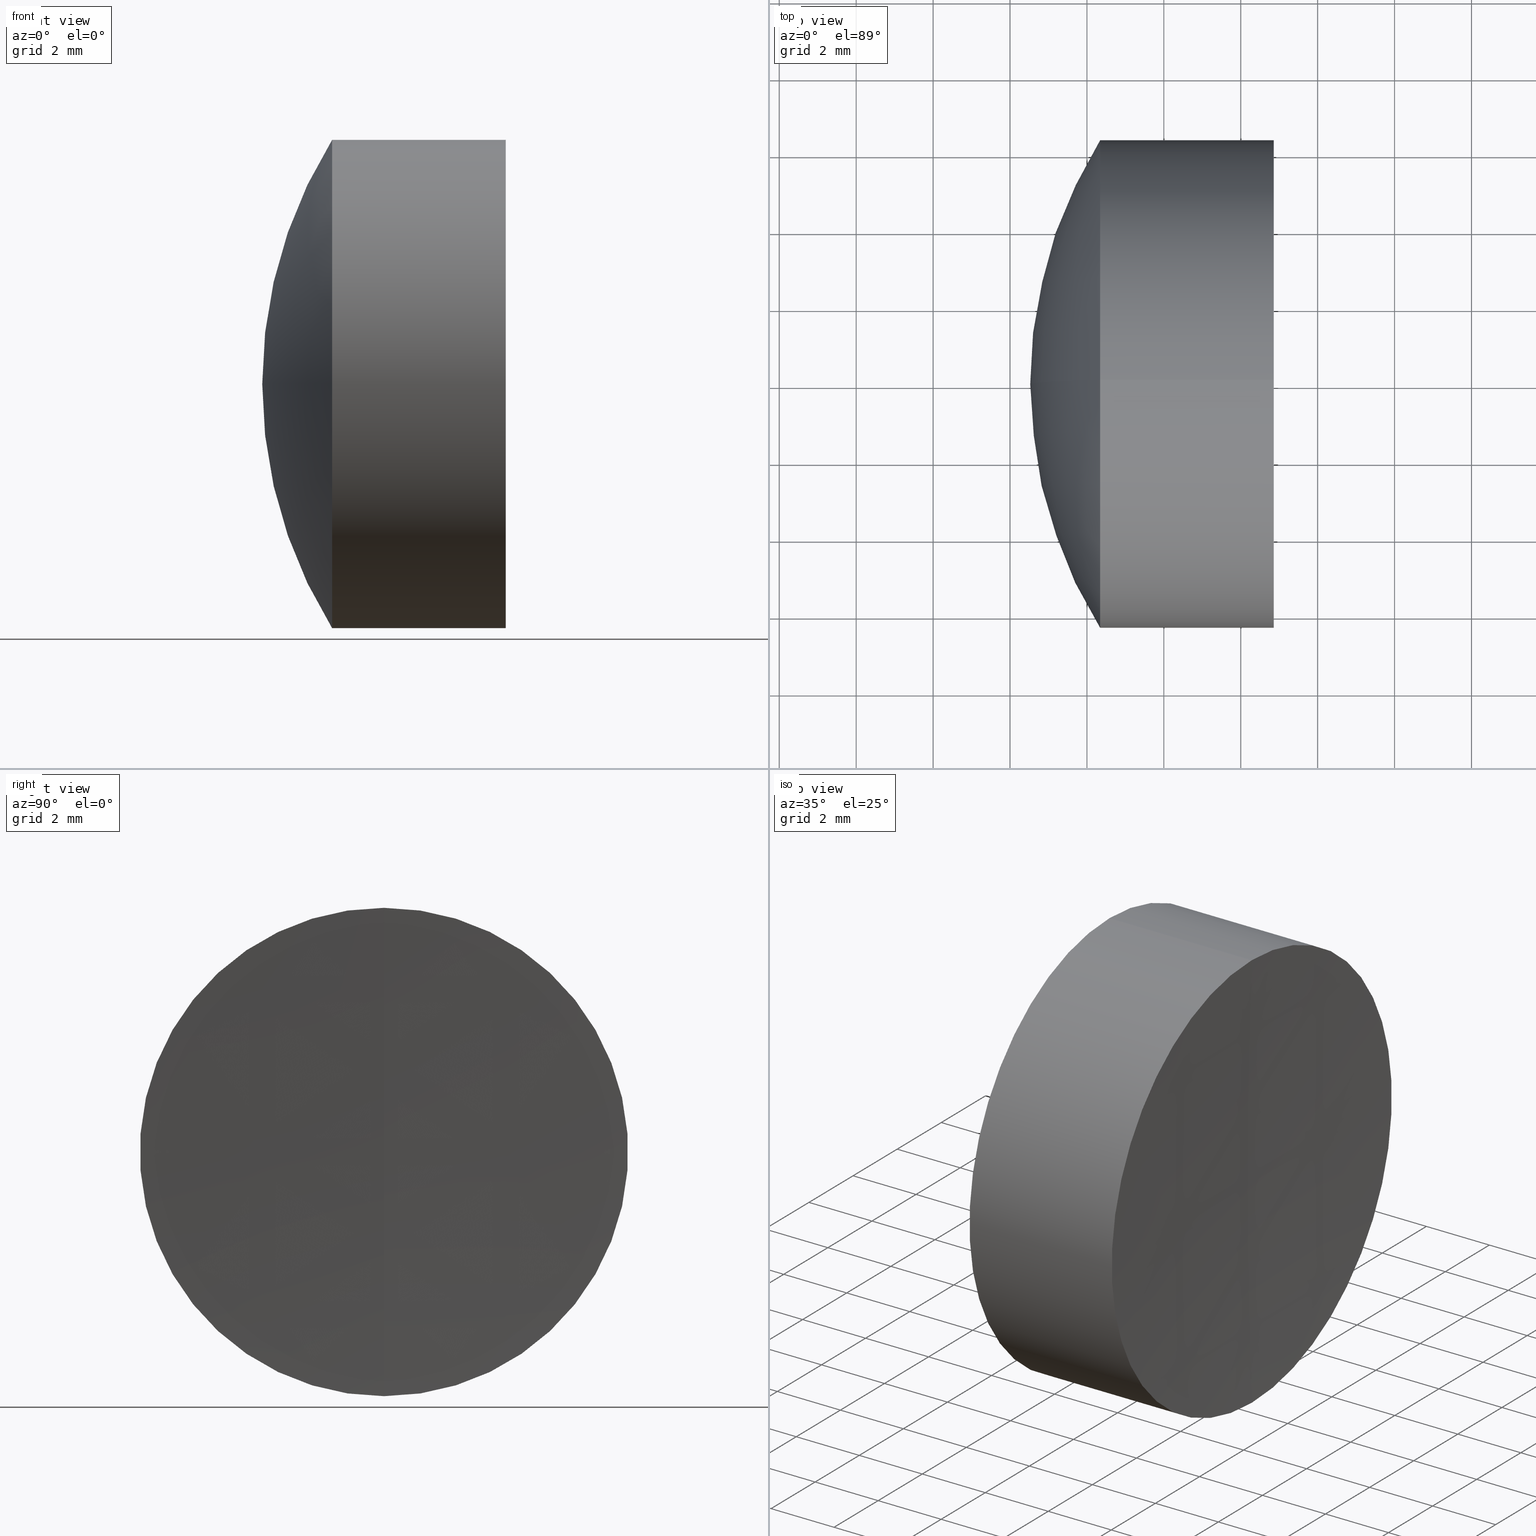
[diagram: canonical four-view strip — front | top / right | iso, engineering-drawing reading convention]
A machine part, canonical four-view strip (front | top / right | iso — engineering-drawing reading convention). The complete STEP part file that produces these views, byte-faithful:
ISO-10303-21;
HEADER;
FILE_DESCRIPTION (( 'STEP AP214' ),
    '1' );
FILE_NAME ('145154.STEP',
    '2019-06-06T09:02:33',
    ( 'user' ),
    ( '΢���й�' ),
    'SwSTEP 2.0',
    'SolidWorks 2016',
    '' );
FILE_SCHEMA (( 'AUTOMOTIVE_DESIGN' ));
ENDSEC;

DATA;
#1 = CIRCLE ( 'NONE', #304, 6.349999999999997900 ) ;
#2 =( LENGTH_UNIT ( ) NAMED_UNIT ( * ) SI_UNIT ( .MILLI., .METRE. ) );
#3 = DIRECTION ( 'NONE',  ( 0.0000000000000000000, -1.000000000000000000, 0.0000000000000000000 ) ) ;
#4 = ORIENTED_EDGE ( 'NONE', *, *, #319, .T. ) ;
#5 = AXIS2_PLACEMENT_3D ( 'NONE', #135, #143, #211 ) ;
#6 = EDGE_CURVE ( 'NONE', #137, #88, #71, .T. ) ;
#7 = SURFACE_STYLE_FILL_AREA ( #155 ) ;
#8 = FACE_OUTER_BOUND ( 'NONE', #107, .T. ) ;
#9 = DIRECTION ( 'NONE',  ( 0.0000000000000000000, 1.224646799147353200E-016, -1.000000000000000000 ) ) ;
#10 = EDGE_CURVE ( 'NONE', #137, #84, #11, .T. ) ;
#11 = CIRCLE ( 'NONE', #161, 6.350000000000004100 ) ;
#12 = DIRECTION ( 'NONE',  ( 0.0000000000000000000, 0.0000000000000000000, 1.000000000000000000 ) ) ;
#13 = CARTESIAN_POINT ( 'NONE',  ( 26.85887678485193300, 0.0000000000000000000, 0.0000000000000000000 ) ) ;
#14 = CARTESIAN_POINT ( 'NONE',  ( 25.22592517938952700, 0.0000000000000000000, 7.923464790483375200E-016 ) ) ;
#15 = CLOSED_SHELL ( 'NONE', ( #157, #140, #271, #239, #324, #345 ) ) ;
#16 = PRESENTATION_LAYER_ASSIGNMENT (  '', '', ( #298 ) ) ;
#17 = CIRCLE ( 'NONE', #332, 6.350000000000004100 ) ;
#18 = CARTESIAN_POINT ( 'NONE',  ( -0.5519199926577972300, 7.776507174585690200E-016, -6.349999999999997900 ) ) ;
#19 = ORIENTED_EDGE ( 'NONE', *, *, #149, .T. ) ;
#20 = CIRCLE ( 'NONE', #109, 6.349999999999997000 ) ;
#21 = DIRECTION ( 'NONE',  ( 0.0000000000000000000, 0.0000000000000000000, 1.000000000000000000 ) ) ;
#22 = CARTESIAN_POINT ( 'NONE',  ( -0.5519199926577972300, 0.0000000000000000000, 0.0000000000000000000 ) ) ;
#23 = SPHERICAL_SURFACE ( 'NONE', #81, 12.94000000000000000 ) ;
#24 = EDGE_CURVE ( 'NONE', #136, #30, #20, .T. ) ;
#25 = DIRECTION ( 'NONE',  ( 0.0000000000000000000, 0.0000000000000000000, 1.000000000000000000 ) ) ;
#26 = ORIENTED_EDGE ( 'NONE', *, *, #24, .T. ) ;
#27 = DIRECTION ( 'NONE',  ( -1.000000000000000000, -0.0000000000000000000, -0.0000000000000000000 ) ) ;
#28 = AXIS2_PLACEMENT_3D ( 'NONE', #289, #280, #97 ) ;
#29 = ORIENTED_EDGE ( 'NONE', *, *, #244, .F. ) ;
#30 = VERTEX_POINT ( 'NONE', #48 ) ;
#31 = VECTOR ( 'NONE', #284, 1000.000000000000000 ) ;
#32 =( GEOMETRIC_REPRESENTATION_CONTEXT ( 3 ) GLOBAL_UNCERTAINTY_ASSIGNED_CONTEXT ( ( #66 ) ) GLOBAL_UNIT_ASSIGNED_CONTEXT ( ( #86, #270, #228 ) ) REPRESENTATION_CONTEXT ( 'NONE', 'WORKASPACE' ) );
#33 = ORIENTED_EDGE ( 'NONE', *, *, #246, .T. ) ;
#34 = COLOUR_RGB ( '',1.000000000000000000, 1.000000000000000000, 1.000000000000000000 ) ;
#35 = LINE ( 'NONE', #323, #31 ) ;
#36 = SURFACE_STYLE_USAGE ( .BOTH. , #222 ) ;
#37 = DIRECTION ( 'NONE',  ( 0.0000000000000000000, 0.0000000000000000000, -1.000000000000000000 ) ) ;
#38 = DIRECTION ( 'NONE',  ( -0.0000000000000000000, -1.000000000000000000, -0.0000000000000000000 ) ) ;
#39 = CIRCLE ( 'NONE', #122, 151.7099999999999800 ) ;
#40 = APPLICATION_CONTEXT ( 'automotive_design' ) ;
#41 = EDGE_CURVE ( 'NONE', #128, #112, #1, .T. ) ;
#42 = DIRECTION ( 'NONE',  ( 0.0000000000000000000, 1.000000000000000000, -0.0000000000000000000 ) ) ;
#43 = ADVANCED_FACE ( 'NONE', ( #8 ), #330, .T. ) ;
#44 = CYLINDRICAL_SURFACE ( 'NONE', #342, 6.349999999999997900 ) ;
#45 = CIRCLE ( 'NONE', #28, 12.94000000000000000 ) ;
#46 = ORIENTED_EDGE ( 'NONE', *, *, #89, .T. ) ;
#47 = DIRECTION ( 'NONE',  ( -0.0000000000000000000, -1.000000000000000000, -0.0000000000000000000 ) ) ;
#48 = CARTESIAN_POINT ( 'NONE',  ( 26.85887678485193700, -7.776507174585457500E-016, 6.349999999999806900 ) ) ;
#49 = CARTESIAN_POINT ( 'NONE',  ( 23.56072451241537300, -7.776507174585689200E-016, 6.349999999999996100 ) ) ;
#50 = DIRECTION ( 'NONE',  ( 0.0000000000000000000, 0.0000000000000000000, 1.000000000000000000 ) ) ;
#51 =( NAMED_UNIT ( * ) SI_UNIT ( $, .STERADIAN. ) SOLID_ANGLE_UNIT ( ) );
#52 = EDGE_CURVE ( 'NONE', #327, #112, #45, .T. ) ;
#53 = ORIENTED_EDGE ( 'NONE', *, *, #278, .T. ) ;
#54 = VECTOR ( 'NONE', #269, 1000.000000000000000 ) ;
#55 = ORIENTED_EDGE ( 'NONE', *, *, #115, .F. ) ;
#56 = DIRECTION ( 'NONE',  ( 1.000000000000000000, 0.0000000000000000000, 0.0000000000000000000 ) ) ;
#57 = CARTESIAN_POINT ( 'NONE',  ( 26.72592517938957000, 0.0000000000000000000, -9.289558294932246800E-015 ) ) ;
#58 = FACE_OUTER_BOUND ( 'NONE', #144, .T. ) ;
#59 = FACE_OUTER_BOUND ( 'NONE', #241, .T. ) ;
#60 = SPHERICAL_SURFACE ( 'NONE', #172, 151.7099999999999800 ) ;
#61 = EDGE_LOOP ( 'NONE', ( #250, #33, #121 ) ) ;
#62 = LINE ( 'NONE', #339, #54 ) ;
#63 = EDGE_CURVE ( 'NONE', #112, #128, #242, .T. ) ;
#64 = UNCERTAINTY_MEASURE_WITH_UNIT (LENGTH_MEASURE( 1.000000000000000100E-005 ), #2, 'distance_accuracy_value', 'NONE');
#65 = AXIS2_PLACEMENT_3D ( 'NONE', #91, #94, #338 ) ;
#66 = UNCERTAINTY_MEASURE_WITH_UNIT (LENGTH_MEASURE( 1.000000000000000100E-005 ), #86, 'distance_accuracy_value', 'NONE');
#67 = FACE_OUTER_BOUND ( 'NONE', #201, .T. ) ;
#68 = LINE ( 'NONE', #205, #105 ) ;
#69 = SPHERICAL_SURFACE ( 'NONE', #195, 12.94000000000000000 ) ;
#70 = DIRECTION ( 'NONE',  ( 0.0000000000000000000, 0.0000000000000000000, 1.000000000000000000 ) ) ;
#71 = CIRCLE ( 'NONE', #65, 12.00000000000000200 ) ;
#72 = FACE_OUTER_BOUND ( 'NONE', #164, .T. ) ;
#73 = CYLINDRICAL_SURFACE ( 'NONE', #204, 6.350000000000004100 ) ;
#74 = DIRECTION ( 'NONE',  ( 0.0000000000000000000, 0.0000000000000000000, -1.000000000000000000 ) ) ;
#75 = DIRECTION ( 'NONE',  ( -1.000000000000000000, -0.0000000000000000000, -0.0000000000000000000 ) ) ;
#76 = ORIENTED_EDGE ( 'NONE', *, *, #246, .F. ) ;
#77 = CARTESIAN_POINT ( 'NONE',  ( 12.28592517938952600, 0.0000000000000000000, 0.0000000000000000000 ) ) ;
#78 = ORIENTED_EDGE ( 'NONE', *, *, #10, .T. ) ;
#79 = PRODUCT_DEFINITION_CONTEXT ( 'detailed design', #40, 'design' ) ;
#80 = DIRECTION ( 'NONE',  ( 0.0000000000000000000, 0.0000000000000000000, 1.000000000000000000 ) ) ;
#81 = AXIS2_PLACEMENT_3D ( 'NONE', #77, #285, #173 ) ;
#82 = ORIENTED_EDGE ( 'NONE', *, *, #227, .F. ) ;
#83 = PRODUCT ( '145154', '145154', '', ( #306 ) ) ;
#84 = VERTEX_POINT ( 'NONE', #153 ) ;
#85 =( GEOMETRIC_REPRESENTATION_CONTEXT ( 3 ) GLOBAL_UNCERTAINTY_ASSIGNED_CONTEXT ( ( #340 ) ) GLOBAL_UNIT_ASSIGNED_CONTEXT ( ( #335, #290, #51 ) ) REPRESENTATION_CONTEXT ( 'NONE', 'WORKASPACE' ) );
#86 =( LENGTH_UNIT ( ) NAMED_UNIT ( * ) SI_UNIT ( .MILLI., .METRE. ) );
#87 = VECTOR ( 'NONE', #119, 1000.000000000000000 ) ;
#88 = VERTEX_POINT ( 'NONE', #234 ) ;
#89 = EDGE_CURVE ( 'NONE', #171, #137, #62, .T. ) ;
#90 = DIRECTION ( 'NONE',  ( -1.000000000000000000, -0.0000000000000000000, -0.0000000000000000000 ) ) ;
#91 = CARTESIAN_POINT ( 'NONE',  ( 32.52592517938953200, 0.0000000000000000000, 6.568687247857372100E-015 ) ) ;
#92 = EDGE_LOOP ( 'NONE', ( #297, #258, #102 ) ) ;
#93 = CIRCLE ( 'NONE', #5, 6.350000000000004100 ) ;
#94 = DIRECTION ( 'NONE',  ( 0.0000000000000000000, 1.000000000000000000, -0.0000000000000000000 ) ) ;
#95 = DIRECTION ( 'NONE',  ( 0.0000000000000000000, 0.0000000000000000000, 1.000000000000000000 ) ) ;
#96 = COLOUR_RGB ( '',1.000000000000000000, 1.000000000000000000, 1.000000000000000000 ) ;
#97 = DIRECTION ( 'NONE',  ( 0.0000000000000000000, 1.224646799147353200E-016, -1.000000000000000000 ) ) ;
#98 = ORIENTED_EDGE ( 'NONE', *, *, #278, .F. ) ;
#99 = CARTESIAN_POINT ( 'NONE',  ( -0.8160621761658039000, 0.0000000000000000000, 0.0000000000000000000 ) ) ;
#100 = FACE_OUTER_BOUND ( 'NONE', #152, .T. ) ;
#101 = CARTESIAN_POINT ( 'NONE',  ( 26.85887678485193300, 0.0000000000000000000, 0.0000000000000000000 ) ) ;
#102 = ORIENTED_EDGE ( 'NONE', *, *, #251, .F. ) ;
#103 = FACE_OUTER_BOUND ( 'NONE', #329, .T. ) ;
#104 = CARTESIAN_POINT ( 'NONE',  ( 12.28592517938952600, 0.0000000000000000000, 0.0000000000000000000 ) ) ;
#105 = VECTOR ( 'NONE', #346, 1000.000000000000000 ) ;
#106 = ADVANCED_FACE ( 'NONE', ( #296 ), #154, .T. ) ;
#107 = EDGE_LOOP ( 'NONE', ( #78, #4, #334 ) ) ;
#108 = CYLINDRICAL_SURFACE ( 'NONE', #248, 6.350000000000004100 ) ;
#109 = AXIS2_PLACEMENT_3D ( 'NONE', #13, #75, #50 ) ;
#110 = COLOUR_RGB ( '',1.000000000000000000, 1.000000000000000000, 1.000000000000000000 ) ;
#111 = DIRECTION ( 'NONE',  ( 0.0000000000000000000, 0.0000000000000000000, 1.000000000000000000 ) ) ;
#112 = VERTEX_POINT ( 'NONE', #49 ) ;
#113 = ORIENTED_EDGE ( 'NONE', *, *, #218, .F. ) ;
#114 = MANIFOLD_SOLID_BREP ( '��ת1', #141 ) ;
#115 = EDGE_CURVE ( 'NONE', #303, #84, #68, .T. ) ;
#116 = CARTESIAN_POINT ( 'NONE',  ( 178.4359251793895600, 0.0000000000000000000, 0.0000000000000000000 ) ) ;
#117 = DIRECTION ( 'NONE',  ( 0.0000000000000000000, 0.0000000000000000000, 1.000000000000000000 ) ) ;
#118 = PRESENTATION_LAYER_ASSIGNMENT (  '', '', ( #273 ) ) ;
#119 = DIRECTION ( 'NONE',  ( -1.000000000000000000, -0.0000000000000000000, -0.0000000000000000000 ) ) ;
#120 = ORIENTED_EDGE ( 'NONE', *, *, #328, .F. ) ;
#121 = ORIENTED_EDGE ( 'NONE', *, *, #6, .T. ) ;
#122 = AXIS2_PLACEMENT_3D ( 'NONE', #317, #42, #260 ) ;
#123 = DIRECTION ( 'NONE',  ( -1.000000000000000000, -0.0000000000000000000, -0.0000000000000000000 ) ) ;
#124 = CIRCLE ( 'NONE', #190, 151.7099999999999800 ) ;
#125 = FILL_AREA_STYLE_COLOUR ( '', #34 ) ;
#126 = CARTESIAN_POINT ( 'NONE',  ( 23.56072451241536600, 0.0000000000000000000, 0.0000000000000000000 ) ) ;
#127 = FACE_OUTER_BOUND ( 'NONE', #148, .T. ) ;
#128 = VERTEX_POINT ( 'NONE', #236 ) ;
#129 = DIRECTION ( 'NONE',  ( -1.000000000000000000, -0.0000000000000000000, -0.0000000000000000000 ) ) ;
#130 = CYLINDRICAL_SURFACE ( 'NONE', #170, 6.349999999999997900 ) ;
#131 = DIRECTION ( 'NONE',  ( 0.0000000000000000000, 0.0000000000000000000, -1.000000000000000000 ) ) ;
#132 = DIRECTION ( 'NONE',  ( -0.0000000000000000000, -1.000000000000000000, -0.0000000000000000000 ) ) ;
#133 = DIRECTION ( 'NONE',  ( 0.0000000000000000000, -1.000000000000000000, -1.224646799147353200E-016 ) ) ;
#134 = ORIENTED_EDGE ( 'NONE', *, *, #41, .T. ) ;
#135 = CARTESIAN_POINT ( 'NONE',  ( 23.56072451241536600, 0.0000000000000000000, 0.0000000000000000000 ) ) ;
#136 = VERTEX_POINT ( 'NONE', #313 ) ;
#137 = VERTEX_POINT ( 'NONE', #292 ) ;
#138 = CIRCLE ( 'NONE', #309, 12.00000000000000200 ) ;
#139 =( GEOMETRIC_REPRESENTATION_CONTEXT ( 3 ) GLOBAL_UNCERTAINTY_ASSIGNED_CONTEXT ( ( #302 ) ) GLOBAL_UNIT_ASSIGNED_CONTEXT ( ( #264, #179, #308 ) ) REPRESENTATION_CONTEXT ( 'NONE', 'WORKASPACE' ) );
#140 = ADVANCED_FACE ( 'NONE', ( #127 ), #60, .F. ) ;
#141 = CLOSED_SHELL ( 'NONE', ( #245, #216, #43, #106, #265, #217 ) ) ;
#142 = AXIS2_PLACEMENT_3D ( 'NONE', #281, #129, #95 ) ;
#143 = DIRECTION ( 'NONE',  ( -1.000000000000000000, -0.0000000000000000000, -0.0000000000000000000 ) ) ;
#144 = EDGE_LOOP ( 'NONE', ( #162, #249, #134 ) ) ;
#145 = DIRECTION ( 'NONE',  ( 0.0000000000000000000, 0.0000000000000000000, -1.000000000000000000 ) ) ;
#146 = CIRCLE ( 'NONE', #293, 12.94000000000000000 ) ;
#147 = CARTESIAN_POINT ( 'NONE',  ( 12.28592517938952600, 0.0000000000000000000, 0.0000000000000000000 ) ) ;
#148 = EDGE_LOOP ( 'NONE', ( #288, #277, #82 ) ) ;
#149 = EDGE_CURVE ( 'NONE', #30, #136, #291, .T. ) ;
#150 = APPLICATION_PROTOCOL_DEFINITION ( 'draft international standard', 'automotive_design', 1998, #243 ) ;
#151 = SURFACE_SIDE_STYLE ('',( #7 ) ) ;
#152 = EDGE_LOOP ( 'NONE', ( #219, #233, #191, #232 ) ) ;
#153 = CARTESIAN_POINT ( 'NONE',  ( 22.34371029263723700, -7.776507174585690200E-016, 6.350000000000005000 ) ) ;
#154 = SPHERICAL_SURFACE ( 'NONE', #320, 12.00000000000000200 ) ;
#155 = FILL_AREA_STYLE ('',( #314 ) ) ;
#156 = AXIS2_PLACEMENT_3D ( 'NONE', #254, #326, #74 ) ;
#157 = ADVANCED_FACE ( 'NONE', ( #67 ), #44, .T. ) ;
#158 = EDGE_LOOP ( 'NONE', ( #113, #26, #167, #225 ) ) ;
#159 = CIRCLE ( 'NONE', #188, 12.94000000000000000 ) ;
#160 = CIRCLE ( 'NONE', #185, 12.94000000000000000 ) ;
#161 = AXIS2_PLACEMENT_3D ( 'NONE', #193, #283, #213 ) ;
#162 = ORIENTED_EDGE ( 'NONE', *, *, #52, .F. ) ;
#163 = CARTESIAN_POINT ( 'NONE',  ( 25.22592517938952700, 0.0000000000000000000, -7.923464790483375200E-016 ) ) ;
#164 = EDGE_LOOP ( 'NONE', ( #29, #181, #267 ) ) ;
#165 = PRESENTATION_STYLE_ASSIGNMENT (( #36 ) ) ;
#166 = DIRECTION ( 'NONE',  ( 0.0000000000000000000, 1.000000000000000000, 0.0000000000000000000 ) ) ;
#167 = ORIENTED_EDGE ( 'NONE', *, *, #325, .T. ) ;
#168 = FILL_AREA_STYLE ('',( #125 ) ) ;
#169 = CARTESIAN_POINT ( 'NONE',  ( 23.56072451241537300, 0.0000000000000000000, 0.0000000000000000000 ) ) ;
#170 = AXIS2_PLACEMENT_3D ( 'NONE', #274, #174, #70 ) ;
#171 = VERTEX_POINT ( 'NONE', #333 ) ;
#172 = AXIS2_PLACEMENT_3D ( 'NONE', #116, #294, #145 ) ;
#173 = DIRECTION ( 'NONE',  ( 0.0000000000000000000, 0.0000000000000000000, 1.000000000000000000 ) ) ;
#174 = DIRECTION ( 'NONE',  ( -1.000000000000000000, -0.0000000000000000000, -0.0000000000000000000 ) ) ;
#175 = DIRECTION ( 'NONE',  ( 0.0000000000000000000, 0.0000000000000000000, 1.000000000000000000 ) ) ;
#176 = FACE_OUTER_BOUND ( 'NONE', #158, .T. ) ;
#177 = PRODUCT_DEFINITION_FORMATION_WITH_SPECIFIED_SOURCE ( '�κ�', '', #83, .NOT_KNOWN. ) ;
#178 = PRESENTATION_LAYER_ASSIGNMENT (  '', '', ( #322 ) ) ;
#179 =( NAMED_UNIT ( * ) PLANE_ANGLE_UNIT ( ) SI_UNIT ( $, .RADIAN. ) );
#180 = MANIFOLD_SOLID_BREP ( '��ת2', #15 ) ;
#181 = ORIENTED_EDGE ( 'NONE', *, *, #24, .F. ) ;
#182 = ORIENTED_EDGE ( 'NONE', *, *, #63, .F. ) ;
#183 = AXIS2_PLACEMENT_3D ( 'NONE', #279, #208, #261 ) ;
#184 = FACE_OUTER_BOUND ( 'NONE', #220, .T. ) ;
#185 = AXIS2_PLACEMENT_3D ( 'NONE', #104, #3, #37 ) ;
#186 = EDGE_CURVE ( 'NONE', #197, #171, #159, .T. ) ;
#187 = ORIENTED_EDGE ( 'NONE', *, *, #186, .T. ) ;
#188 = AXIS2_PLACEMENT_3D ( 'NONE', #252, #202, #347 ) ;
#189 = CARTESIAN_POINT ( 'NONE',  ( 32.52592517938953200, 0.0000000000000000000, 6.568687247857372100E-015 ) ) ;
#190 = AXIS2_PLACEMENT_3D ( 'NONE', #253, #133, #336 ) ;
#191 = ORIENTED_EDGE ( 'NONE', *, *, #115, .T. ) ;
#192 = PRODUCT_DEFINITION ( 'δ֪', '', #177, #79 ) ;
#193 = CARTESIAN_POINT ( 'NONE',  ( 22.34371029263723300, 0.0000000000000000000, 0.0000000000000000000 ) ) ;
#194 = CIRCLE ( 'NONE', #200, 6.350000000000004100 ) ;
#195 = AXIS2_PLACEMENT_3D ( 'NONE', #257, #47, #223 ) ;
#196 = ADVANCED_BREP_SHAPE_REPRESENTATION ( '145154', ( #114, #180, #341 ), #318 ) ;
#197 = VERTEX_POINT ( 'NONE', #14 ) ;
#198 = DIRECTION ( 'NONE',  ( 0.0000000000000000000, 0.0000000000000000000, 1.000000000000000000 ) ) ;
#199 = DIRECTION ( 'NONE',  ( -1.000000000000000000, -0.0000000000000000000, -0.0000000000000000000 ) ) ;
#200 = AXIS2_PLACEMENT_3D ( 'NONE', #315, #238, #80 ) ;
#201 = EDGE_LOOP ( 'NONE', ( #19, #203, #182, #262 ) ) ;
#202 = DIRECTION ( 'NONE',  ( -0.0000000000000000000, 1.000000000000000000, 1.224646799147353200E-016 ) ) ;
#203 = ORIENTED_EDGE ( 'NONE', *, *, #218, .T. ) ;
#204 = AXIS2_PLACEMENT_3D ( 'NONE', #99, #27, #175 ) ;
#205 = CARTESIAN_POINT ( 'NONE',  ( -0.8160621761658039000, 0.0000000000000000000, 6.350000000000004100 ) ) ;
#206 = SPHERICAL_SURFACE ( 'NONE', #230, 12.94000000000000000 ) ;
#207 = DIRECTION ( 'NONE',  ( 0.0000000000000000000, 0.0000000000000000000, 1.000000000000000000 ) ) ;
#208 = DIRECTION ( 'NONE',  ( -0.0000000000000000000, -1.000000000000000000, -0.0000000000000000000 ) ) ;
#209 = ORIENTED_EDGE ( 'NONE', *, *, #52, .T. ) ;
#210 = ORIENTED_EDGE ( 'NONE', *, *, #286, .F. ) ;
#211 = DIRECTION ( 'NONE',  ( 0.0000000000000000000, 0.0000000000000000000, 1.000000000000000000 ) ) ;
#212 = SHAPE_DEFINITION_REPRESENTATION ( #311, #196 ) ;
#213 = DIRECTION ( 'NONE',  ( 0.0000000000000000000, 0.0000000000000000000, 1.000000000000000000 ) ) ;
#214 = VERTEX_POINT ( 'NONE', #57 ) ;
#215 = APPLICATION_PROTOCOL_DEFINITION ( 'draft international standard', 'automotive_design', 1998, #40 ) ;
#216 = ADVANCED_FACE ( 'NONE', ( #184 ), #73, .T. ) ;
#217 = ADVANCED_FACE ( 'NONE', ( #259 ), #23, .T. ) ;
#218 = EDGE_CURVE ( 'NONE', #136, #128, #305, .T. ) ;
#219 = ORIENTED_EDGE ( 'NONE', *, *, #89, .F. ) ;
#220 = EDGE_LOOP ( 'NONE', ( #53, #46, #76, #55 ) ) ;
#221 = MECHANICAL_DESIGN_GEOMETRIC_PRESENTATION_REPRESENTATION (  '', ( #298 ), #32 ) ;
#222 = SURFACE_SIDE_STYLE ('',( #256 ) ) ;
#223 = DIRECTION ( 'NONE',  ( 0.0000000000000000000, 0.0000000000000000000, -1.000000000000000000 ) ) ;
#224 = MECHANICAL_DESIGN_GEOMETRIC_PRESENTATION_REPRESENTATION (  '', ( #273 ), #85 ) ;
#225 = ORIENTED_EDGE ( 'NONE', *, *, #41, .F. ) ;
#226 = CARTESIAN_POINT ( 'NONE',  ( 12.28592517938952600, 0.0000000000000000000, 0.0000000000000000000 ) ) ;
#227 = EDGE_CURVE ( 'NONE', #136, #214, #39, .T. ) ;
#228 =( NAMED_UNIT ( * ) SI_UNIT ( $, .STERADIAN. ) SOLID_ANGLE_UNIT ( ) );
#229 = DIRECTION ( 'NONE',  ( -1.000000000000000000, -0.0000000000000000000, -0.0000000000000000000 ) ) ;
#230 = AXIS2_PLACEMENT_3D ( 'NONE', #268, #38, #131 ) ;
#231 = DIRECTION ( 'NONE',  ( -1.000000000000000000, -0.0000000000000000000, -0.0000000000000000000 ) ) ;
#232 = ORIENTED_EDGE ( 'NONE', *, *, #10, .F. ) ;
#233 = ORIENTED_EDGE ( 'NONE', *, *, #251, .T. ) ;
#234 = CARTESIAN_POINT ( 'NONE',  ( 20.52592517938952500, 0.0000000000000000000, 5.833899168368960400E-015 ) ) ;
#235 = SURFACE_SIDE_STYLE ('',( #263 ) ) ;
#236 = CARTESIAN_POINT ( 'NONE',  ( 23.56072451241537300, 0.0000000000000000000, -6.349999999999996100 ) ) ;
#237 = MECHANICAL_DESIGN_GEOMETRIC_PRESENTATION_REPRESENTATION (  '', ( #322 ), #139 ) ;
#238 = DIRECTION ( 'NONE',  ( -1.000000000000000000, -0.0000000000000000000, -0.0000000000000000000 ) ) ;
#239 = ADVANCED_FACE ( 'NONE', ( #58 ), #69, .F. ) ;
#240 = SURFACE_STYLE_USAGE ( .BOTH. , #235 ) ;
#241 = EDGE_LOOP ( 'NONE', ( #210, #187, #98 ) ) ;
#242 = CIRCLE ( 'NONE', #142, 6.349999999999997900 ) ;
#243 = APPLICATION_CONTEXT ( 'automotive_design' ) ;
#244 = EDGE_CURVE ( 'NONE', #30, #214, #124, .T. ) ;
#245 = ADVANCED_FACE ( 'NONE', ( #59 ), #299, .T. ) ;
#246 = EDGE_CURVE ( 'NONE', #84, #137, #194, .T. ) ;
#247 = PRESENTATION_STYLE_ASSIGNMENT (( #343 ) ) ;
#248 = AXIS2_PLACEMENT_3D ( 'NONE', #310, #123, #25 ) ;
#249 = ORIENTED_EDGE ( 'NONE', *, *, #328, .T. ) ;
#250 = ORIENTED_EDGE ( 'NONE', *, *, #319, .F. ) ;
#251 = EDGE_CURVE ( 'NONE', #171, #303, #17, .T. ) ;
#252 = CARTESIAN_POINT ( 'NONE',  ( 12.28592517938952600, 0.0000000000000000000, 0.0000000000000000000 ) ) ;
#253 = CARTESIAN_POINT ( 'NONE',  ( 178.4359251793895600, 0.0000000000000000000, 0.0000000000000000000 ) ) ;
#254 = CARTESIAN_POINT ( 'NONE',  ( 178.4359251793895600, 0.0000000000000000000, 0.0000000000000000000 ) ) ;
#255 = FILL_AREA_STYLE_COLOUR ( '', #96 ) ;
#256 = SURFACE_STYLE_FILL_AREA ( #337 ) ;
#257 = CARTESIAN_POINT ( 'NONE',  ( 12.28592517938952600, 0.0000000000000000000, 0.0000000000000000000 ) ) ;
#258 = ORIENTED_EDGE ( 'NONE', *, *, #286, .T. ) ;
#259 = FACE_OUTER_BOUND ( 'NONE', #92, .T. ) ;
#260 = DIRECTION ( 'NONE',  ( 0.0000000000000000000, 0.0000000000000000000, 1.000000000000000000 ) ) ;
#261 = DIRECTION ( 'NONE',  ( 0.0000000000000000000, 0.0000000000000000000, -1.000000000000000000 ) ) ;
#262 = ORIENTED_EDGE ( 'NONE', *, *, #325, .F. ) ;
#263 = SURFACE_STYLE_FILL_AREA ( #168 ) ;
#264 =( LENGTH_UNIT ( ) NAMED_UNIT ( * ) SI_UNIT ( .MILLI., .METRE. ) );
#265 = ADVANCED_FACE ( 'NONE', ( #100 ), #108, .T. ) ;
#266 = CARTESIAN_POINT ( 'NONE',  ( 23.56072451241536600, 0.0000000000000000000, 6.350000000000004100 ) ) ;
#267 = ORIENTED_EDGE ( 'NONE', *, *, #227, .T. ) ;
#268 = CARTESIAN_POINT ( 'NONE',  ( 12.28592517938952600, 0.0000000000000000000, 0.0000000000000000000 ) ) ;
#269 = DIRECTION ( 'NONE',  ( -1.000000000000000000, -0.0000000000000000000, -0.0000000000000000000 ) ) ;
#270 =( NAMED_UNIT ( * ) PLANE_ANGLE_UNIT ( ) SI_UNIT ( $, .RADIAN. ) );
#271 = ADVANCED_FACE ( 'NONE', ( #103 ), #206, .F. ) ;
#272 = DIRECTION ( 'NONE',  ( 0.0000000000000000000, 0.0000000000000000000, 1.000000000000000000 ) ) ;
#273 = STYLED_ITEM ( 'NONE', ( #344 ), #114 ) ;
#274 = CARTESIAN_POINT ( 'NONE',  ( -0.5519199926577972300, 0.0000000000000000000, 0.0000000000000000000 ) ) ;
#275 = DIRECTION ( 'NONE',  ( 0.0000000000000000000, 1.000000000000000000, -0.0000000000000000000 ) ) ;
#276 = PRODUCT_RELATED_PRODUCT_CATEGORY ( 'part', '', ( #83 ) ) ;
#277 = ORIENTED_EDGE ( 'NONE', *, *, #244, .T. ) ;
#278 = EDGE_CURVE ( 'NONE', #303, #171, #93, .T. ) ;
#279 = CARTESIAN_POINT ( 'NONE',  ( 32.52592517938953200, 0.0000000000000000000, 6.568687247857372100E-015 ) ) ;
#280 = DIRECTION ( 'NONE',  ( 0.0000000000000000000, -1.000000000000000000, -1.224646799147353200E-016 ) ) ;
#281 = CARTESIAN_POINT ( 'NONE',  ( 23.56072451241537300, 0.0000000000000000000, 0.0000000000000000000 ) ) ;
#282 = AXIS2_PLACEMENT_3D ( 'NONE', #147, #166, #117 ) ;
#283 = DIRECTION ( 'NONE',  ( -1.000000000000000000, -0.0000000000000000000, -0.0000000000000000000 ) ) ;
#284 = DIRECTION ( 'NONE',  ( -1.000000000000000000, -0.0000000000000000000, -0.0000000000000000000 ) ) ;
#285 = DIRECTION ( 'NONE',  ( 0.0000000000000000000, 1.000000000000000000, 0.0000000000000000000 ) ) ;
#286 = EDGE_CURVE ( 'NONE', #197, #303, #160, .T. ) ;
#287 = DIRECTION ( 'NONE',  ( 0.0000000000000000000, 0.0000000000000000000, -1.000000000000000000 ) ) ;
#288 = ORIENTED_EDGE ( 'NONE', *, *, #149, .F. ) ;
#289 = CARTESIAN_POINT ( 'NONE',  ( 12.28592517938952600, 0.0000000000000000000, 0.0000000000000000000 ) ) ;
#290 =( NAMED_UNIT ( * ) PLANE_ANGLE_UNIT ( ) SI_UNIT ( $, .RADIAN. ) );
#291 = CIRCLE ( 'NONE', #312, 6.349999999999997000 ) ;
#292 = CARTESIAN_POINT ( 'NONE',  ( 22.34371029263723700, 0.0000000000000000000, -6.349999999999997900 ) ) ;
#293 = AXIS2_PLACEMENT_3D ( 'NONE', #226, #275, #111 ) ;
#294 = DIRECTION ( 'NONE',  ( -0.0000000000000000000, -1.000000000000000000, -0.0000000000000000000 ) ) ;
#295 = DIRECTION ( 'NONE',  ( 0.0000000000000000000, -1.000000000000000000, -1.224646799147353200E-016 ) ) ;
#296 = FACE_OUTER_BOUND ( 'NONE', #61, .T. ) ;
#297 = ORIENTED_EDGE ( 'NONE', *, *, #186, .F. ) ;
#298 = STYLED_ITEM ( 'NONE', ( #165 ), #196 ) ;
#299 = SPHERICAL_SURFACE ( 'NONE', #282, 12.94000000000000000 ) ;
#300 =( NAMED_UNIT ( * ) PLANE_ANGLE_UNIT ( ) SI_UNIT ( $, .RADIAN. ) );
#301 = ORIENTED_EDGE ( 'NONE', *, *, #63, .T. ) ;
#302 = UNCERTAINTY_MEASURE_WITH_UNIT (LENGTH_MEASURE( 1.000000000000000100E-005 ), #264, 'distance_accuracy_value', 'NONE');
#303 = VERTEX_POINT ( 'NONE', #266 ) ;
#304 = AXIS2_PLACEMENT_3D ( 'NONE', #169, #231, #198 ) ;
#305 = LINE ( 'NONE', #18, #87 ) ;
#306 = PRODUCT_CONTEXT ( 'NONE', #243, 'mechanical' ) ;
#307 = CARTESIAN_POINT ( 'NONE',  ( 0.0000000000000000000, 0.0000000000000000000, 0.0000000000000000000 ) ) ;
#308 =( NAMED_UNIT ( * ) SI_UNIT ( $, .STERADIAN. ) SOLID_ANGLE_UNIT ( ) );
#309 = AXIS2_PLACEMENT_3D ( 'NONE', #189, #295, #9 ) ;
#310 = CARTESIAN_POINT ( 'NONE',  ( -0.8160621761658039000, 0.0000000000000000000, 0.0000000000000000000 ) ) ;
#311 = PRODUCT_DEFINITION_SHAPE ( 'NONE', 'NONE',  #192 ) ;
#312 = AXIS2_PLACEMENT_3D ( 'NONE', #101, #199, #207 ) ;
#313 = CARTESIAN_POINT ( 'NONE',  ( 26.85887678485193700, 0.0000000000000000000, -6.349999999999806900 ) ) ;
#314 = FILL_AREA_STYLE_COLOUR ( '', #110 ) ;
#315 = CARTESIAN_POINT ( 'NONE',  ( 22.34371029263723300, 0.0000000000000000000, 0.0000000000000000000 ) ) ;
#316 =( NAMED_UNIT ( * ) SI_UNIT ( $, .STERADIAN. ) SOLID_ANGLE_UNIT ( ) );
#317 = CARTESIAN_POINT ( 'NONE',  ( 178.4359251793895600, 0.0000000000000000000, 0.0000000000000000000 ) ) ;
#318 =( GEOMETRIC_REPRESENTATION_CONTEXT ( 3 ) GLOBAL_UNCERTAINTY_ASSIGNED_CONTEXT ( ( #64 ) ) GLOBAL_UNIT_ASSIGNED_CONTEXT ( ( #2, #300, #316 ) ) REPRESENTATION_CONTEXT ( 'NONE', 'WORKASPACE' ) );
#319 = EDGE_CURVE ( 'NONE', #84, #88, #138, .T. ) ;
#320 = AXIS2_PLACEMENT_3D ( 'NONE', #321, #132, #287 ) ;
#321 = CARTESIAN_POINT ( 'NONE',  ( 32.52592517938953200, 0.0000000000000000000, 6.568687247857372100E-015 ) ) ;
#322 = STYLED_ITEM ( 'NONE', ( #247 ), #180 ) ;
#323 = CARTESIAN_POINT ( 'NONE',  ( -0.5519199926577972300, 0.0000000000000000000, 6.349999999999997900 ) ) ;
#324 = ADVANCED_FACE ( 'NONE', ( #72 ), #331, .F. ) ;
#325 = EDGE_CURVE ( 'NONE', #30, #112, #35, .T. ) ;
#326 = DIRECTION ( 'NONE',  ( -0.0000000000000000000, -1.000000000000000000, -0.0000000000000000000 ) ) ;
#327 = VERTEX_POINT ( 'NONE', #163 ) ;
#328 = EDGE_CURVE ( 'NONE', #327, #128, #146, .T. ) ;
#329 = EDGE_LOOP ( 'NONE', ( #120, #209, #301 ) ) ;
#330 = SPHERICAL_SURFACE ( 'NONE', #183, 12.00000000000000200 ) ;
#331 = SPHERICAL_SURFACE ( 'NONE', #156, 151.7099999999999800 ) ;
#332 = AXIS2_PLACEMENT_3D ( 'NONE', #126, #90, #21 ) ;
#333 = CARTESIAN_POINT ( 'NONE',  ( 23.56072451241536600, 7.776507174585697100E-016, -6.350000000000004100 ) ) ;
#334 = ORIENTED_EDGE ( 'NONE', *, *, #6, .F. ) ;
#335 =( LENGTH_UNIT ( ) NAMED_UNIT ( * ) SI_UNIT ( .MILLI., .METRE. ) );
#336 = DIRECTION ( 'NONE',  ( 0.0000000000000000000, 1.224646799147353200E-016, -1.000000000000000000 ) ) ;
#337 = FILL_AREA_STYLE ('',( #255 ) ) ;
#338 = DIRECTION ( 'NONE',  ( 0.0000000000000000000, 0.0000000000000000000, 1.000000000000000000 ) ) ;
#339 = CARTESIAN_POINT ( 'NONE',  ( -0.8160621761658039000, 7.776507174585697100E-016, -6.350000000000004100 ) ) ;
#340 = UNCERTAINTY_MEASURE_WITH_UNIT (LENGTH_MEASURE( 1.000000000000000100E-005 ), #335, 'distance_accuracy_value', 'NONE');
#341 = AXIS2_PLACEMENT_3D ( 'NONE', #307, #272, #56 ) ;
#342 = AXIS2_PLACEMENT_3D ( 'NONE', #22, #229, #12 ) ;
#343 = SURFACE_STYLE_USAGE ( .BOTH. , #151 ) ;
#344 = PRESENTATION_STYLE_ASSIGNMENT (( #240 ) ) ;
#345 = ADVANCED_FACE ( 'NONE', ( #176 ), #130, .T. ) ;
#346 = DIRECTION ( 'NONE',  ( -1.000000000000000000, -0.0000000000000000000, -0.0000000000000000000 ) ) ;
#347 = DIRECTION ( 'NONE',  ( 0.0000000000000000000, -1.224646799147353200E-016, 1.000000000000000000 ) ) ;
ENDSEC;
END-ISO-10303-21;
